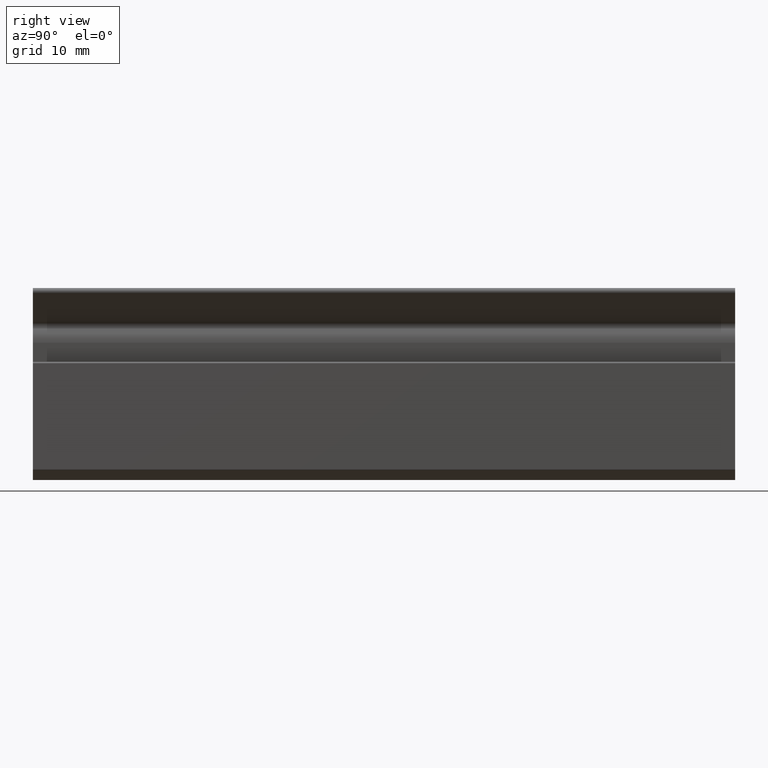
[diagram: clean part render]
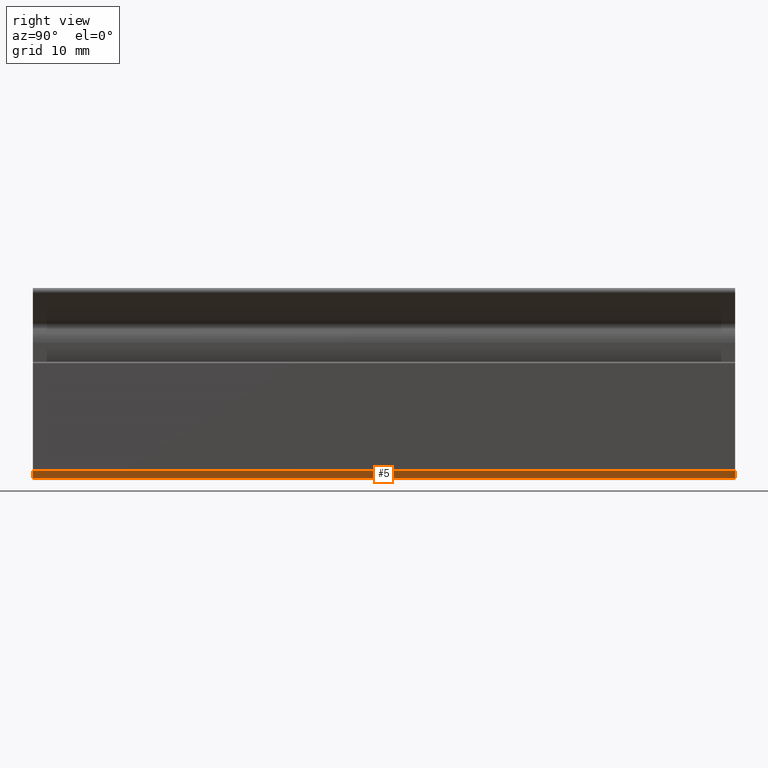
[diagram: same view with one face highlighted and labeled with its STEP entity id]
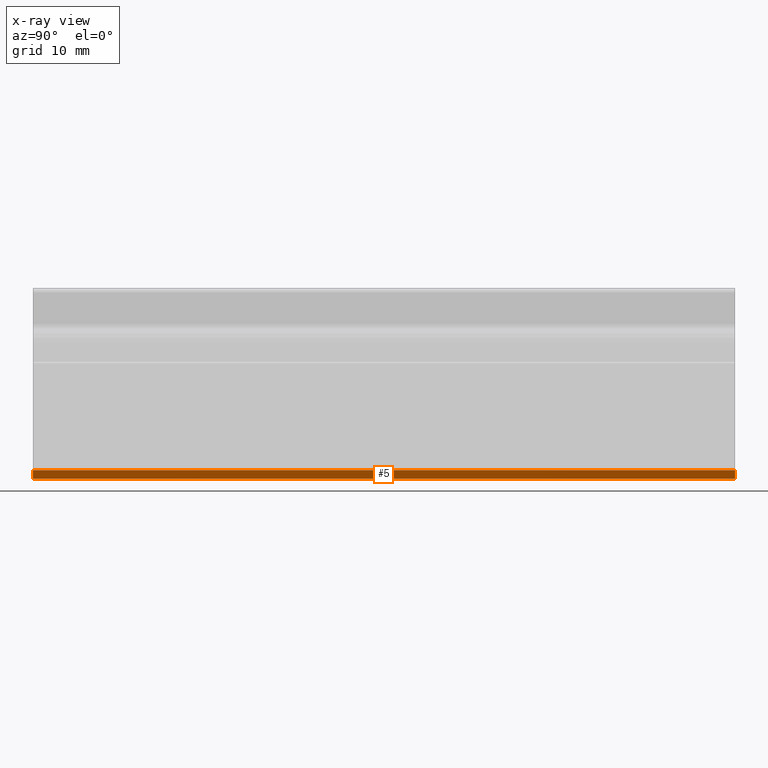
[diagram: x-ray of the same camera — body ghosted, the highlighted face saturated]
A machine part, right view. The second image highlights one B-rep face of the part: STEP entity #5.
The next image is the same camera in x-ray: the body ghosted, the highlighted face saturated — about 0% of this face is hidden behind the body in this view.
In plain terms, the highlighted planar face has unit normal (0.5864, 0, -0.81).
Its self-contained STEP definition (entity closure, byte-faithful):
#5 = ADVANCED_FACE ( 'NONE', ( #1119 ), #302, .T. ) ;
#30 = VECTOR ( 'NONE', #628, 1000.000000000000000 ) ;
#40 = VECTOR ( 'NONE', #111, 1000.000000000000000 ) ;
#64 = VECTOR ( 'NONE', #487, 1000.000000000000000 ) ;
#67 = LINE ( 'NONE', #488, #64 ) ;
#84 = LINE ( 'NONE', #644, #30 ) ;
#104 = LINE ( 'NONE', #112, #40 ) ;
#111 = DIRECTION ( 'NONE',  ( 0.8100431441474602600, -0.0000000000000000000, 0.5863702794478050700 ) ) ;
#112 = CARTESIAN_POINT ( 'NONE',  ( 4.041619437585059600, 80.00000000000000000, 2.456987056756899900 ) ) ;
#160 = DIRECTION ( 'NONE',  ( -0.0000000000000000000, -1.000000000000000000, -0.0000000000000000000 ) ) ;
#162 = CARTESIAN_POINT ( 'NONE',  ( 0.8573398330148660500, 80.00000000000000000, 0.1519654846814587100 ) ) ;
#190 = CARTESIAN_POINT ( 'NONE',  ( 4.041619437585059600, 80.00000000000000000, 2.456987056756899900 ) ) ;
#256 = CARTESIAN_POINT ( 'NONE',  ( 0.8573398330152017800, 0.0000000000000000000, 0.1519654846816654000 ) ) ;
#259 = CARTESIAN_POINT ( 'NONE',  ( 2.145952352261705400, 80.00000000000000000, 1.084760346869954300 ) ) ;
#260 = CARTESIAN_POINT ( 'NONE',  ( 0.8573398330152017800, 80.00000000000000000, 0.1519654846816654000 ) ) ;
#261 = CARTESIAN_POINT ( 'NONE',  ( 2.145952352261705400, 0.0000000000000000000, 1.084760346869954300 ) ) ;
#270 = VERTEX_POINT ( 'NONE', #261 ) ;
#275 = VERTEX_POINT ( 'NONE', #260 ) ;
#276 = VERTEX_POINT ( 'NONE', #259 ) ;
#301 = VERTEX_POINT ( 'NONE', #256 ) ;
#302 = PLANE ( 'NONE',  #1066 ) ;
#487 = DIRECTION ( 'NONE',  ( 0.0000000000000000000, 1.000000000000000000, 0.0000000000000000000 ) ) ;
#488 = CARTESIAN_POINT ( 'NONE',  ( 2.145952352261051300, 80.00200000000001000, 1.084760346870858200 ) ) ;
#624 = DIRECTION ( 'NONE',  ( -0.8100431441474602600, 0.0000000000000000000, -0.5863702794478050700 ) ) ;
#625 = DIRECTION ( 'NONE',  ( 0.5863702794478050700, 0.0000000000000000000, -0.8100431441474602600 ) ) ;
#628 = DIRECTION ( 'NONE',  ( -0.8100431441474602600, 0.0000000000000000000, -0.5863702794478050700 ) ) ;
#644 = CARTESIAN_POINT ( 'NONE',  ( 4.041619437585059600, 0.0000000000000000000, 2.456987056756899900 ) ) ;
#696 = EDGE_CURVE ( 'NONE', #275, #301, #971, .T. ) ;
#709 = EDGE_CURVE ( 'NONE', #275, #276, #104, .T. ) ;
#773 = ORIENTED_EDGE ( 'NONE', *, *, #709, .T. ) ;
#780 = ORIENTED_EDGE ( 'NONE', *, *, #1216, .F. ) ;
#789 = ORIENTED_EDGE ( 'NONE', *, *, #696, .F. ) ;
#791 = ORIENTED_EDGE ( 'NONE', *, *, #1191, .T. ) ;
#827 = EDGE_LOOP ( 'NONE', ( #791, #789, #773, #780 ) ) ;
#971 = LINE ( 'NONE', #162, #1178 ) ;
#1066 = AXIS2_PLACEMENT_3D ( 'NONE', #190, #625, #624 ) ;
#1119 = FACE_OUTER_BOUND ( 'NONE', #827, .T. ) ;
#1178 = VECTOR ( 'NONE', #160, 1000.000000000000000 ) ;
#1191 = EDGE_CURVE ( 'NONE', #270, #301, #84, .T. ) ;
#1216 = EDGE_CURVE ( 'NONE', #270, #276, #67, .T. ) ;